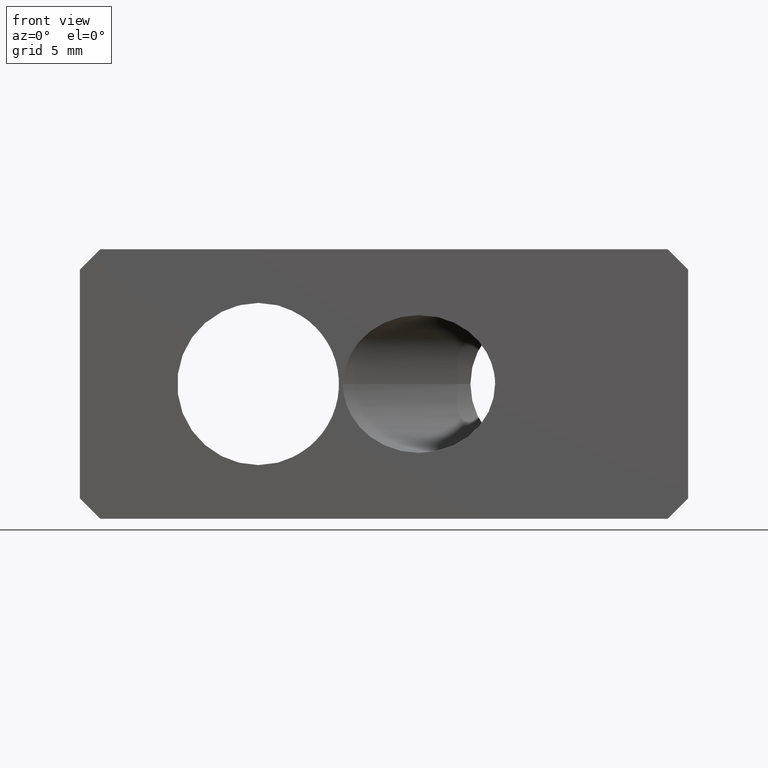
[diagram: clean part render]
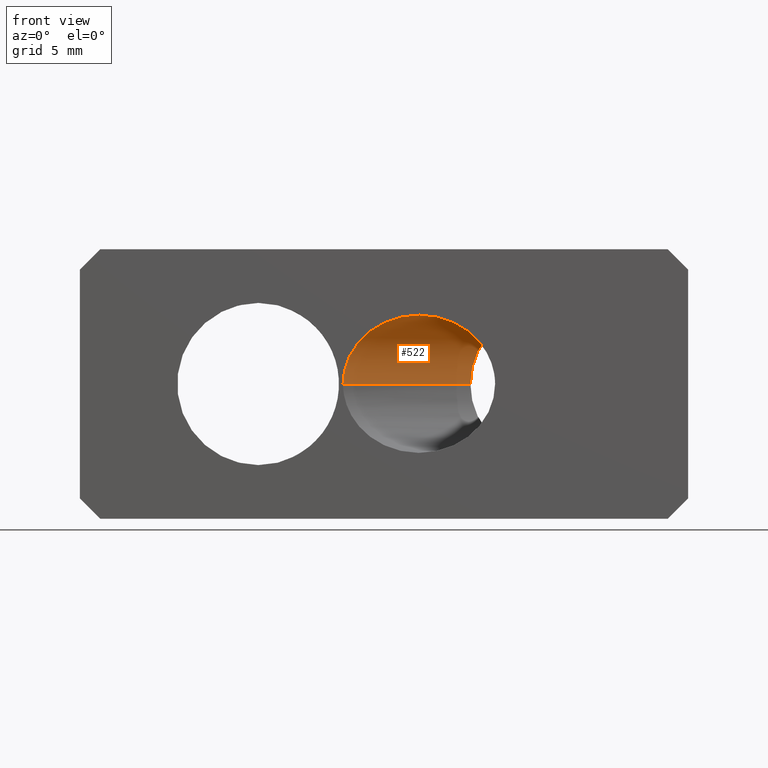
[diagram: same view with one face highlighted and labeled with its STEP entity id]
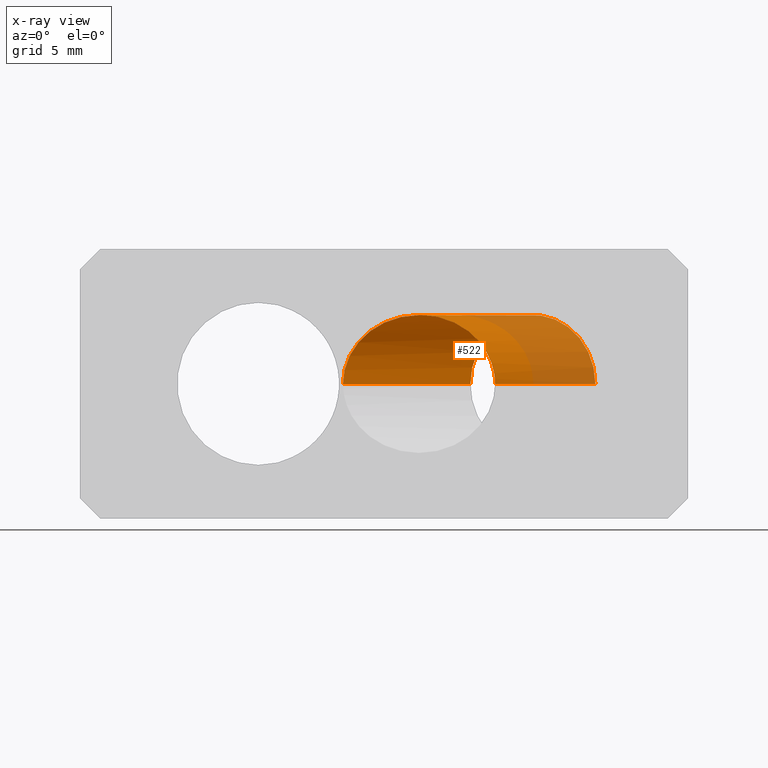
[diagram: x-ray of the same camera — body ghosted, the highlighted face saturated]
A machine part, front view. The second image highlights one B-rep face of the part: STEP entity #522.
The next image is the same camera in x-ray: the body ghosted, the highlighted face saturated — about 30% of this face is hidden behind the body in this view.
In plain terms, the highlighted cylindrical surface (partial cylindrical patch) has radius 3.4 mm, axis along (0.4226, 0.9063, -0).
Its self-contained STEP definition (entity closure, byte-faithful):
#117 = CARTESIAN_POINT ( 'NONE',  ( 12.97754563594010700, 0.0000000000000000000, -8.673617379884035500E-016 ) ) ;
#219 = VERTEX_POINT ( 'NONE', #377 ) ;
#221 = VERTEX_POINT ( 'NONE', #379 ) ;
#232 = VERTEX_POINT ( 'NONE', #390 ) ;
#270 = VERTEX_POINT ( 'NONE', #117 ) ;
#377 = CARTESIAN_POINT ( 'NONE',  ( 20.48051548488500400, 0.0000000000000000000, -4.509818262783045800E-016 ) ) ;
#379 = CARTESIAN_POINT ( 'NONE',  ( 25.42560098518118400, 10.60477007789679900, -4.509818262783045800E-016 ) ) ;
#390 = CARTESIAN_POINT ( 'NONE',  ( 19.26270803333196100, 13.47857425773350600, -8.673617379884035500E-016 ) ) ;
#417 =( BOUNDED_CURVE ( )  B_SPLINE_CURVE ( 3, ( #3564, #3562, #3568, #3569 ),
 .UNSPECIFIED., .F., .F. ) 
 B_SPLINE_CURVE_WITH_KNOTS ( ( 4, 4 ),
 ( 3.141592653589793100, 6.283185307179586200 ),
 .UNSPECIFIED. ) 
 CURVE ( )  GEOMETRIC_REPRESENTATION_ITEM ( )  RATIONAL_B_SPLINE_CURVE ( ( 1.000000000000000000, 0.3333333333333333700, 0.3333333333333333700, 1.000000000000000000 ) ) 
 REPRESENTATION_ITEM ( '' )  );
#426 = EDGE_CURVE ( 'NONE', #219, #221, #2182, .T. ) ;
#522 = ADVANCED_FACE ( 'NONE', ( #2558 ), #2565, .F. ) ;
#883 = EDGE_CURVE ( 'NONE', #270, #232, #2643, .T. ) ;
#961 = EDGE_CURVE ( 'NONE', #270, #219, #417, .T. ) ;
#968 = EDGE_CURVE ( 'NONE', #232, #221, #3729, .T. ) ;
#1020 = EDGE_LOOP ( 'NONE', ( #2099, #2100, #2101, #2102 ) ) ;
#2099 = ORIENTED_EDGE ( 'NONE', *, *, #426, .F. ) ;
#2100 = ORIENTED_EDGE ( 'NONE', *, *, #961, .F. ) ;
#2101 = ORIENTED_EDGE ( 'NONE', *, *, #883, .T. ) ;
#2102 = ORIENTED_EDGE ( 'NONE', *, *, #968, .T. ) ;
#2182 = LINE ( 'NONE', #5042, #2185 ) ;
#2185 = VECTOR ( 'NONE', #5053, 1000.000000000000000 ) ;
#2558 = FACE_OUTER_BOUND ( 'NONE', #1020, .T. ) ;
#2565 = CYLINDRICAL_SURFACE ( 'NONE', #2841, 3.399999999999990600 ) ;
#2641 = VECTOR ( 'NONE', #3400, 1000.000000000000000 ) ;
#2643 = LINE ( 'NONE', #3401, #2641 ) ;
#2841 = AXIS2_PLACEMENT_3D ( 'NONE', #2988, #2987, #2983 ) ;
#2911 = AXIS2_PLACEMENT_3D ( 'NONE', #3585, #3586, #3587 ) ;
#2983 = DIRECTION ( 'NONE',  ( -0.9063077870366527100, 0.4226182617406936700, 0.0000000000000000000 ) ) ;
#2987 = DIRECTION ( 'NONE',  ( 0.4226182617406937800, 0.9063077870366526000, -0.0000000000000000000 ) ) ;
#2988 = CARTESIAN_POINT ( 'NONE',  ( 22.34415450925657300, 12.04167216781515000, -8.673617379884035500E-016 ) ) ;
#3400 = DIRECTION ( 'NONE',  ( 0.4226182617406937800, 0.9063077870366526000, -0.0000000000000000000 ) ) ;
#3401 = CARTESIAN_POINT ( 'NONE',  ( 19.26270803333196100, 13.47857425773350400, -8.673617379884035500E-016 ) ) ;
#3562 = CARTESIAN_POINT ( 'NONE',  ( 12.97754563594010200, 0.0000000000000000000, 6.799999999999982100 ) ) ;
#3564 = CARTESIAN_POINT ( 'NONE',  ( 12.97754563594010700, 0.0000000000000000000, -8.673617379884035500E-016 ) ) ;
#3568 = CARTESIAN_POINT ( 'NONE',  ( 20.48051548488500700, 0.0000000000000000000, 6.799999999999982100 ) ) ;
#3569 = CARTESIAN_POINT ( 'NONE',  ( 20.48051548488500400, 0.0000000000000000000, -4.509818262783045800E-016 ) ) ;
#3585 = CARTESIAN_POINT ( 'NONE',  ( 22.34415450925657300, 12.04167216781515200, -8.673617379884035500E-016 ) ) ;
#3586 = DIRECTION ( 'NONE',  ( 0.4226182617406937800, 0.9063077870366526000, -0.0000000000000000000 ) ) ;
#3587 = DIRECTION ( 'NONE',  ( -0.9063077870366524900, 0.4226182617406940600, 0.0000000000000000000 ) ) ;
#3729 = CIRCLE ( 'NONE', #2911, 3.399999999999987500 ) ;
#5042 = CARTESIAN_POINT ( 'NONE',  ( 25.42560098518118400, 10.60477007789679700, -4.509818262783045800E-016 ) ) ;
#5053 = DIRECTION ( 'NONE',  ( 0.4226182617406937800, 0.9063077870366526000, -0.0000000000000000000 ) ) ;